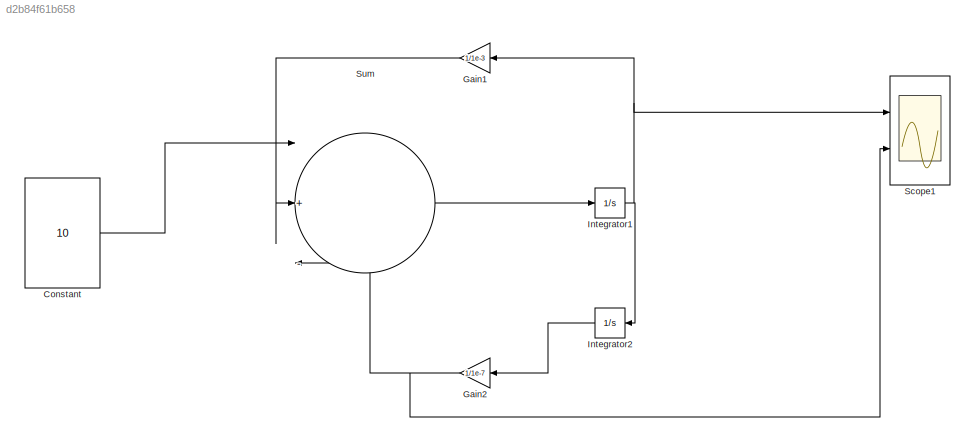
MODEL slx_d2b84f61b658
KIND model
CONFIG AbsTol = auto
CONFIG EnableMultiTasking = off
CONFIG FixedStep = 1e-7
CONFIG MaxStep = auto
CONFIG MinStep = auto
CONFIG RelTol = 1e-3
CONFIG SampleTimeConstraint = Unconstrained
CONFIG SolverName = ode4
CONFIG StartTime = 0.0
CONFIG StopTime = 0.1
BLOCK [Constant] Constant
  Value = 10
BLOCK [Gain] Gain1
  Gain = 1/1e-3
BLOCK [Gain] Gain2
  Gain = 1/1e-7
BLOCK [Integrator] Integrator1
  Ports = [1, 1]
BLOCK [Integrator] Integrator2
  Ports = [1, 1]
BLOCK [Scope] Scope1
  Floating = off
  NumInputPorts = 2
  Ports = [2]
  ScopeSpecificationString = Simulink.scopes.TimeScopeBlockCfg('CurrentConfiguration', extmgr.ConfigurationSet(extmgr.Configuration('Core','General UI',true),extmgr.Configuration('Core','Source UI',true),extmgr.Configuration('Sources','WiredSimulink',true,'DataLoggingVariableName','ScopeData1'),extmgr.Configuration('Visuals','Time Domain',true,'SerializedDisplays',{struct('MinYLimReal','-0.00203','MaxYLimReal','0.00303','YLab...<+2016ch>
BLOCK [Sum] Sum
  Inputs = |+--
  Ports = [3, 1]
LINE Constant:1 -> Sum:1
LINE Gain1:1 -> Sum:2
NET Gain2:1 -> Scope1:2, Sum:3
NET Integrator1:1 -> Gain1:1, Integrator2:1, Scope1:1
LINE Integrator2:1 -> Gain2:1
LINE Sum:1 -> Integrator1:1
note: NET lines group one-source signal fan-out (src -> all destinations, sorted); 1:1 wires keep LINE
